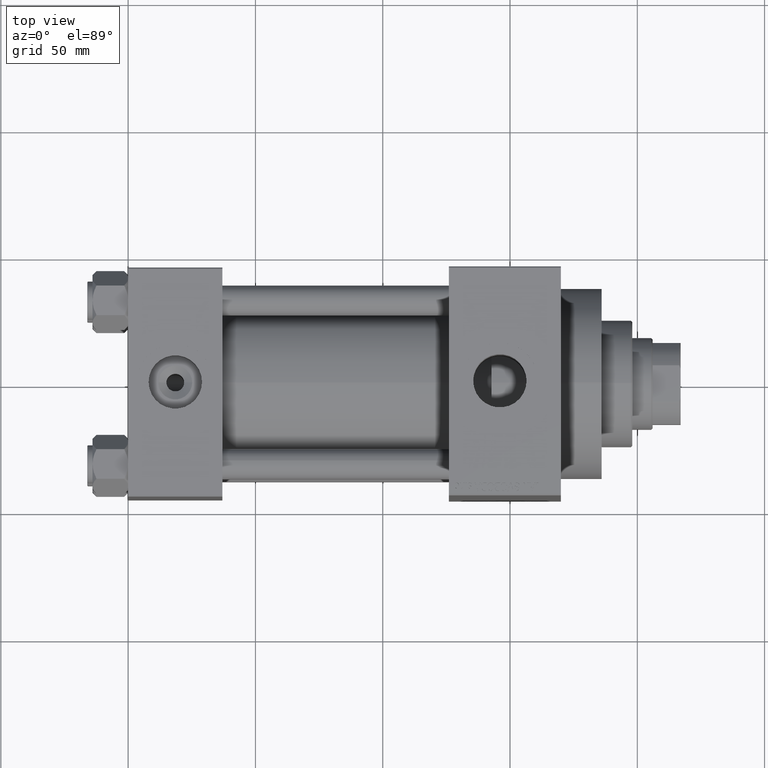
[diagram: clean part render]
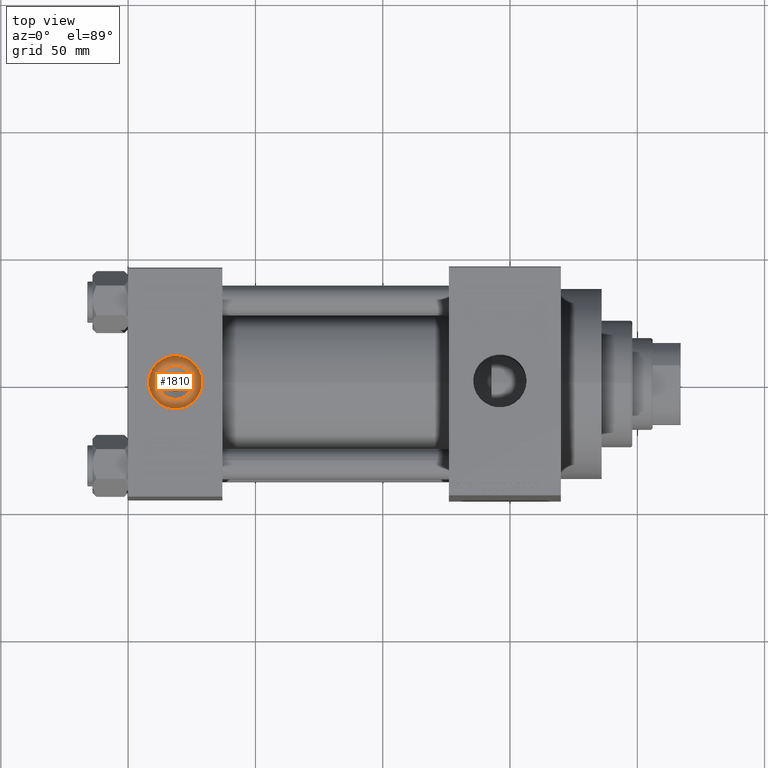
[diagram: same view with one face highlighted and labeled with its STEP entity id]
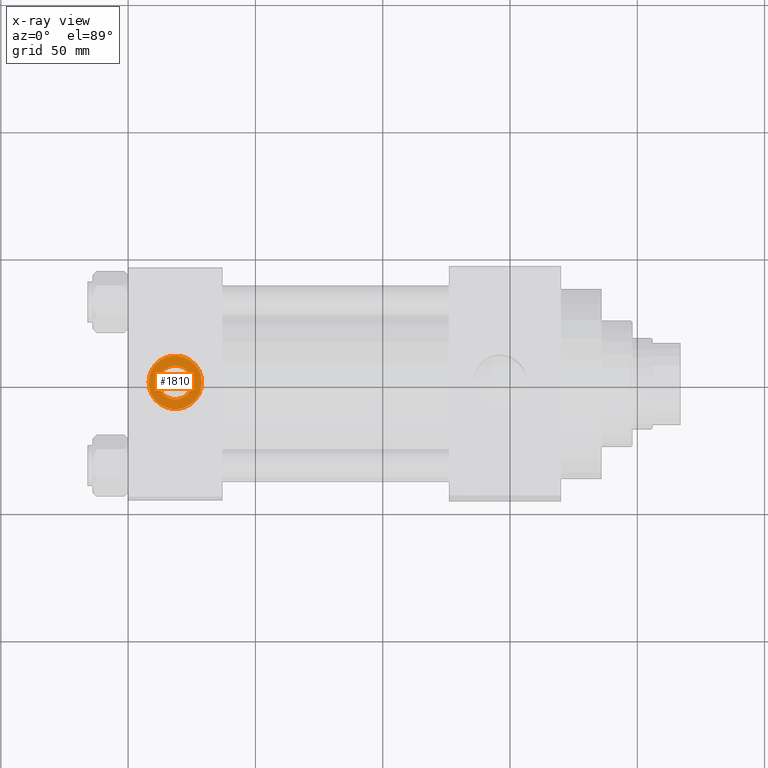
[diagram: x-ray of the same camera — body ghosted, the highlighted face saturated]
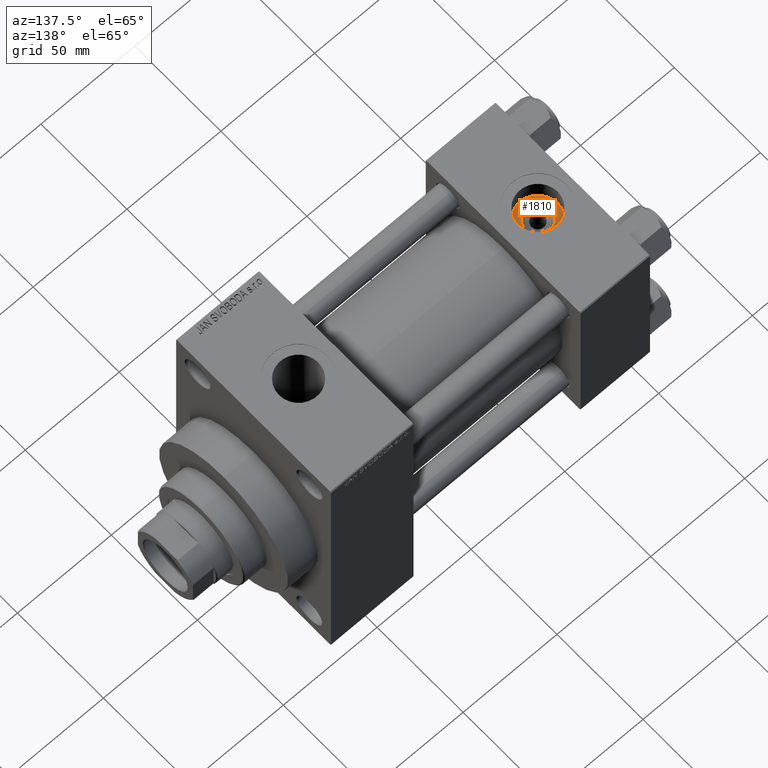
[diagram: same view with one face highlighted and labeled with its STEP entity id]
A machine part, top view. The second image highlights one B-rep face of the part: STEP entity #1810.
The next image is the same camera in x-ray: the body ghosted, the highlighted face saturated — about 0% of this face is hidden behind the body in this view.
A second angle (auxiliary view) of the same face is appended — the face is thin or edge-on in the first view.
In plain terms, the highlighted planar face has unit normal (0, 0, 1).
Its self-contained STEP definition (entity closure, byte-faithful):
#422 = ORIENTED_EDGE ( 'NONE', *, *, #5082, .T. ) ;
#1199 = VERTEX_POINT ( 'NONE', #19027 ) ;
#1362 = PLANE ( 'NONE',  #16755 ) ;
#1798 = CARTESIAN_POINT ( 'NONE',  ( 25.13999999999992241, -8.673617379884038628E-15, 34.20000000000000995 ) ) ;
#1810 = ADVANCED_FACE ( 'NONE', ( #9258, #37895 ), #1362, .T. ) ;
#3908 = CIRCLE ( 'NONE', #16096, 10.48000000000000043 ) ;
#5082 = EDGE_CURVE ( 'NONE', #9071, #1199, #3908, .T. ) ;
#5928 = CARTESIAN_POINT ( 'NONE',  ( 28.98000000000000043, -8.673617379884038628E-15, 34.20000000000000995 ) ) ;
#5989 = AXIS2_PLACEMENT_3D ( 'NONE', #17901, #21722, #32451 ) ;
#6571 = DIRECTION ( 'NONE',  ( 1.000000000000000000, 0.000000000000000000, 0.000000000000000000 ) ) ;
#8728 = DIRECTION ( 'NONE',  ( 1.000000000000000000, 0.000000000000000000, 0.000000000000000000 ) ) ;
#9071 = VERTEX_POINT ( 'NONE', #5928 ) ;
#9258 = FACE_BOUND ( 'NONE', #40618, .T. ) ;
#9794 = ORIENTED_EDGE ( 'NONE', *, *, #33294, .T. ) ;
#11521 = EDGE_LOOP ( 'NONE', ( #422, #9794 ) ) ;
#12061 = CIRCLE ( 'NONE', #39503, 10.48000000000000043 ) ;
#13026 = CARTESIAN_POINT ( 'NONE',  ( 18.50000000000000000, -8.673617379884038628E-15, 34.20000000000000995 ) ) ;
#13033 = DIRECTION ( 'NONE',  ( 0.000000000000000000, 0.000000000000000000, 1.000000000000000000 ) ) ;
#14261 = DIRECTION ( 'NONE',  ( -0.000000000000000000, -0.000000000000000000, -1.000000000000000000 ) ) ;
#15581 = VERTEX_POINT ( 'NONE', #1798 ) ;
#16096 = AXIS2_PLACEMENT_3D ( 'NONE', #45717, #13033, #6571 ) ;
#16755 = AXIS2_PLACEMENT_3D ( 'NONE', #16894, #26942, #41718 ) ;
#16894 = CARTESIAN_POINT ( 'NONE',  ( 18.50000000000000000, -8.673617379884038628E-15, 34.20000000000000995 ) ) ;
#17901 = CARTESIAN_POINT ( 'NONE',  ( 18.50000000000000000, -8.673617379884038628E-15, 34.20000000000000995 ) ) ;
#19027 = CARTESIAN_POINT ( 'NONE',  ( 8.019999999999999574, -7.390187534377611561E-15, 34.20000000000000995 ) ) ;
#21722 = DIRECTION ( 'NONE',  ( -0.000000000000000000, -0.000000000000000000, -1.000000000000000000 ) ) ;
#22827 = ORIENTED_EDGE ( 'NONE', *, *, #33743, .T. ) ;
#26942 = DIRECTION ( 'NONE',  ( 0.000000000000000000, 0.000000000000000000, 1.000000000000000000 ) ) ;
#28909 = EDGE_CURVE ( 'NONE', #40362, #15581, #41630, .T. ) ;
#32451 = DIRECTION ( 'NONE',  ( 1.000000000000000000, 0.000000000000000000, 0.000000000000000000 ) ) ;
#33294 = EDGE_CURVE ( 'NONE', #1199, #9071, #12061, .T. ) ;
#33743 = EDGE_CURVE ( 'NONE', #15581, #40362, #37235, .T. ) ;
#37235 = CIRCLE ( 'NONE', #5989, 6.639999999999924185 ) ;
#37895 = FACE_OUTER_BOUND ( 'NONE', #11521, .T. ) ;
#39325 = AXIS2_PLACEMENT_3D ( 'NONE', #43153, #14261, #42442 ) ;
#39503 = AXIS2_PLACEMENT_3D ( 'NONE', #13026, #41902, #8728 ) ;
#40362 = VERTEX_POINT ( 'NONE', #40900 ) ;
#40618 = EDGE_LOOP ( 'NONE', ( #22827, #44644 ) ) ;
#40900 = CARTESIAN_POINT ( 'NONE',  ( 11.86000000000007581, -7.860451905250203618E-15, 34.20000000000000995 ) ) ;
#41630 = CIRCLE ( 'NONE', #39325, 6.639999999999924185 ) ;
#41718 = DIRECTION ( 'NONE',  ( 1.000000000000000000, 0.000000000000000000, -0.000000000000000000 ) ) ;
#41902 = DIRECTION ( 'NONE',  ( 0.000000000000000000, 0.000000000000000000, 1.000000000000000000 ) ) ;
#42442 = DIRECTION ( 'NONE',  ( 1.000000000000000000, 0.000000000000000000, 0.000000000000000000 ) ) ;
#43153 = CARTESIAN_POINT ( 'NONE',  ( 18.50000000000000000, -8.673617379884038628E-15, 34.20000000000000995 ) ) ;
#44644 = ORIENTED_EDGE ( 'NONE', *, *, #28909, .T. ) ;
#45717 = CARTESIAN_POINT ( 'NONE',  ( 18.50000000000000000, -8.673617379884038628E-15, 34.20000000000000995 ) ) ;